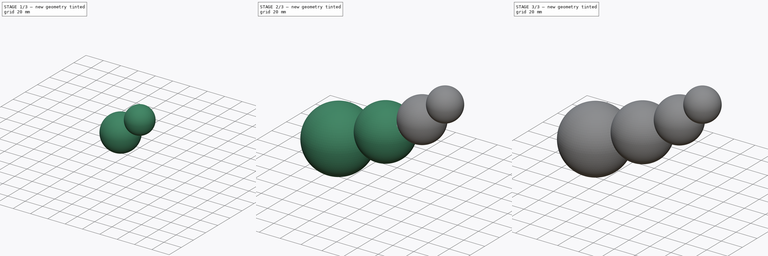
[diagram: build sequence overview — one tinted view per stage of 3, left to right]
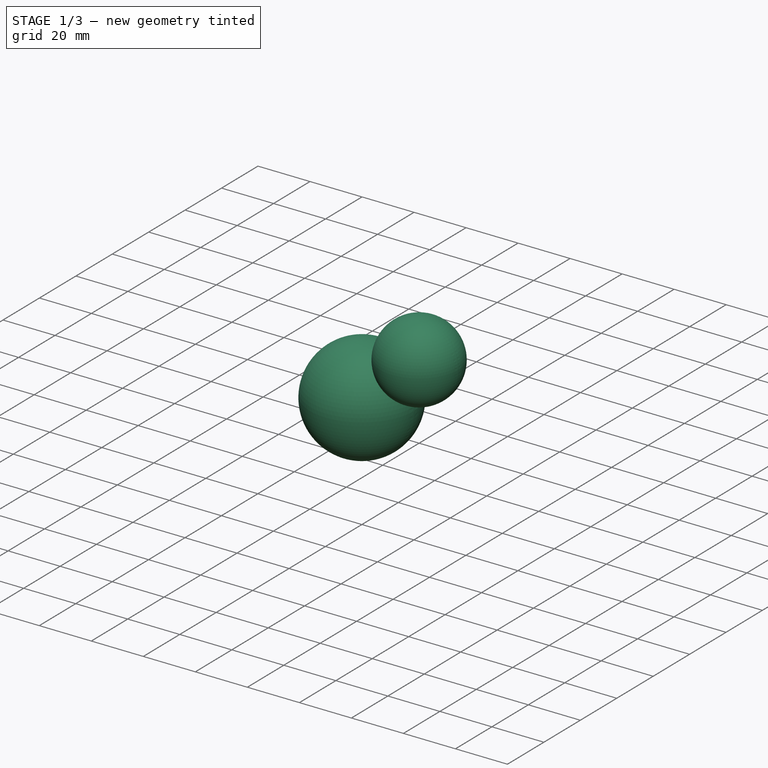
[diagram: stage 1 of 3 — iso view after this stage's code; geometry added in this stage tinted green]
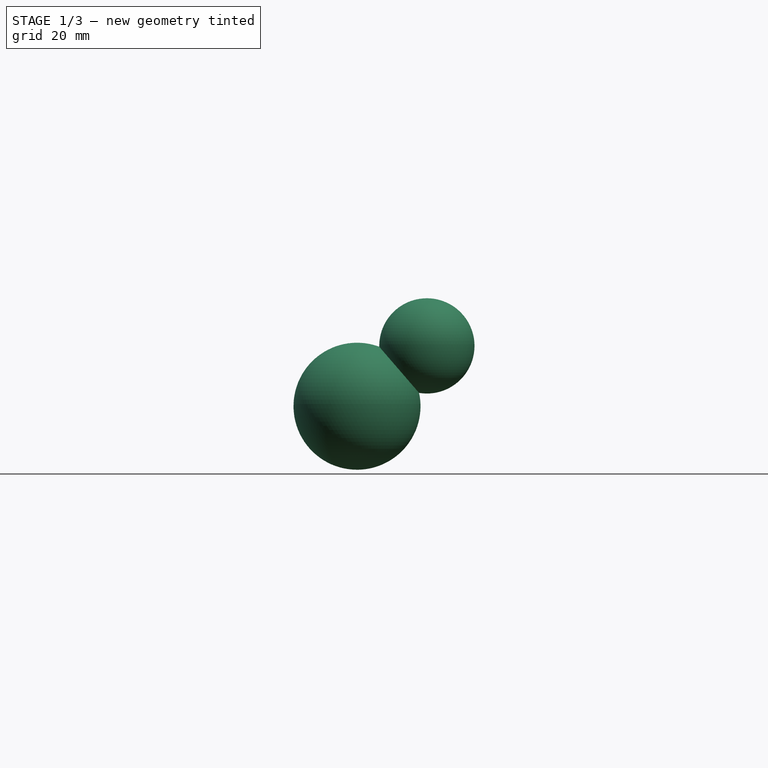
[diagram: stage 1 of 3 — front view after this stage's code; geometry added in this stage tinted green]
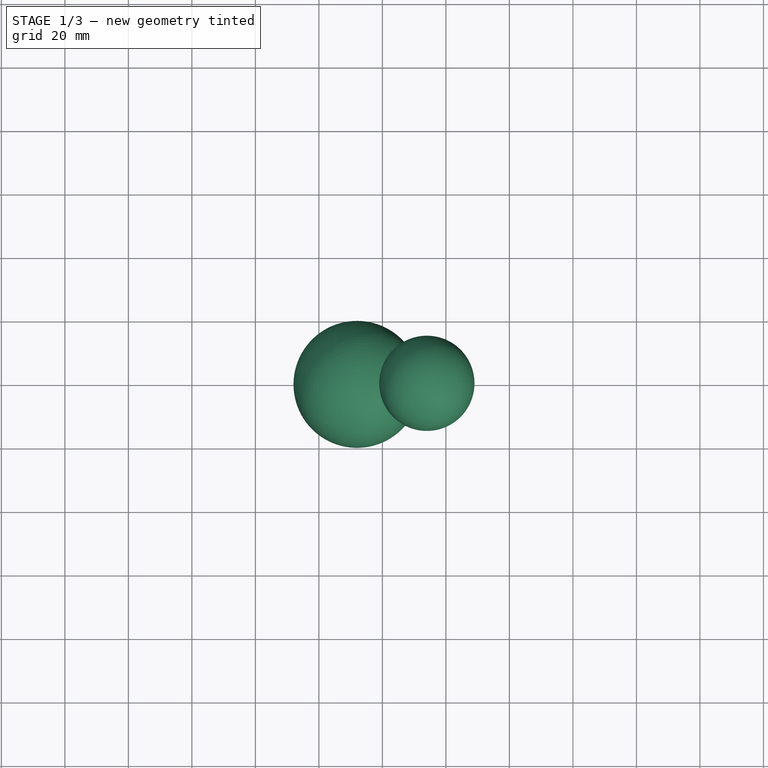
[diagram: stage 1 of 3 — top view after this stage's code; geometry added in this stage tinted green]
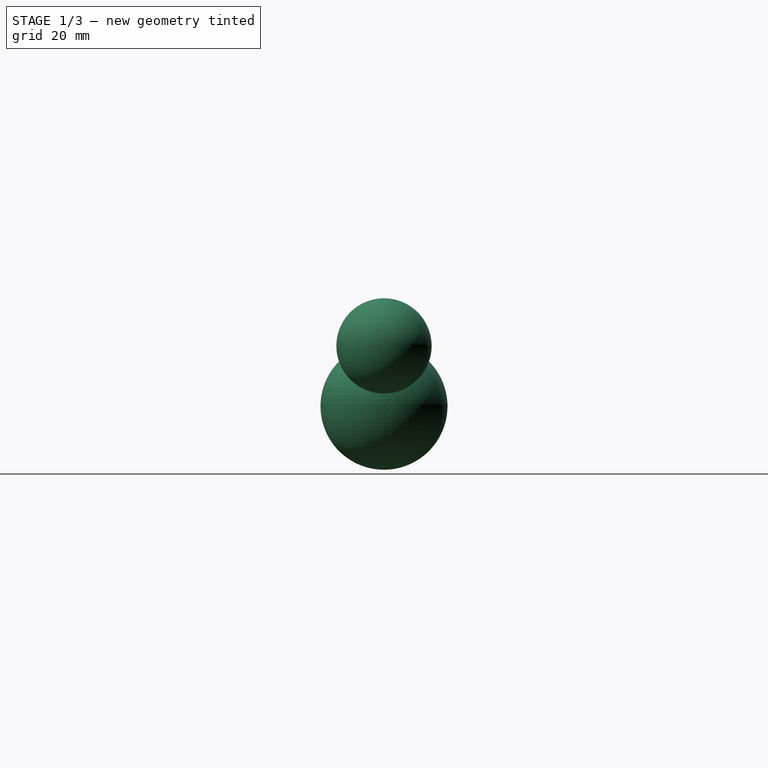
[diagram: stage 1 of 3 — right view after this stage's code; geometry added in this stage tinted green]
FCSTD DOCUMENT  (FreeCAD 0.14R3691 (Git))
Label: Shaft-1
License: CC-BY 3.0
LicenseURL: http://creativecommons.org/licenses/by/3.0/
objects: Part::Sphere×4, Sketcher::SketchObject×2, Part::Sweep×1, Part::MultiFuse×1
note: 8 computed .brp shape members not serialized (recipe doc carries the construction recipe); baked Part::Feature solids carry a one-line shape summary decoded from their .brp

FEATURE [Part::Sphere] Sphere002  label="Sphere 2"
  Angle1 = -90
  Angle2 = 90
  Angle3 = 360
  Placement = pos=(112,0,40) rot=(0,0,1;0rad)
  Radius = 20
FEATURE [Part::Sphere] Sphere003  label="Sphere 3"
  Angle1 = -90
  Angle2 = 90
  Angle3 = 360
  Placement = pos=(134,0,59) rot=(0,0,1;0rad)
  Radius = 15
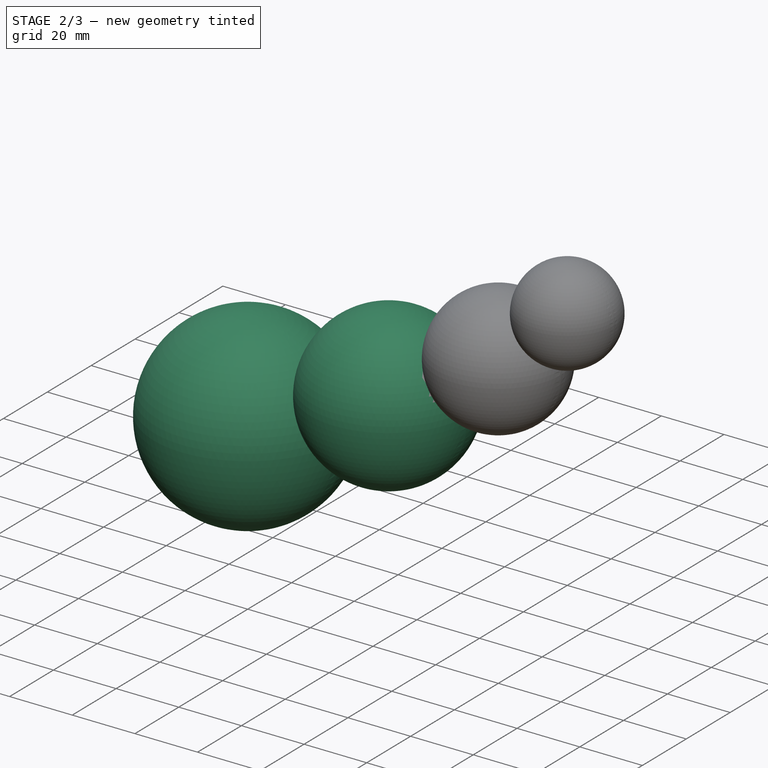
[diagram: stage 2 of 3 — iso view after this stage's code; geometry added in this stage tinted green]
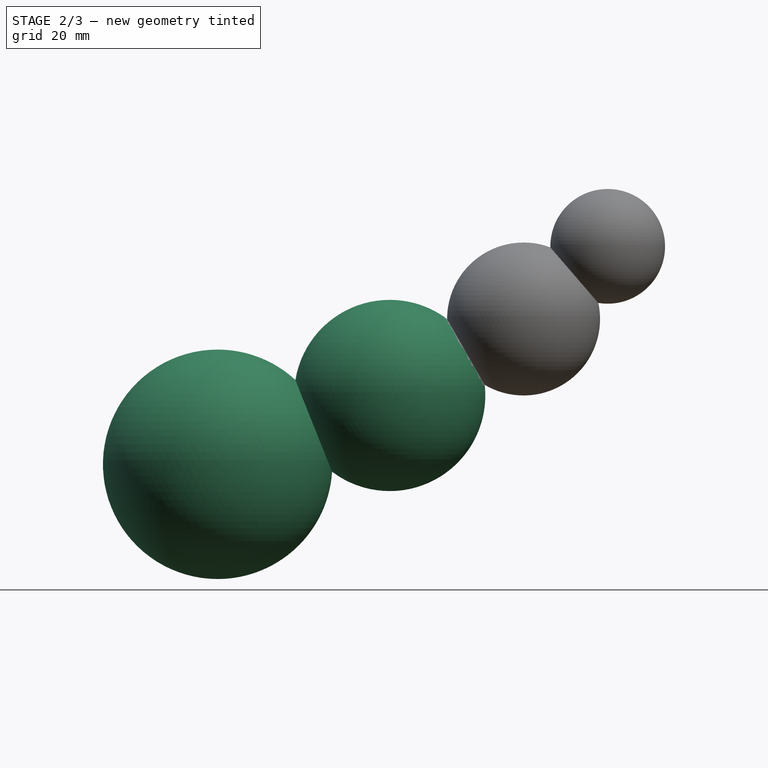
[diagram: stage 2 of 3 — front view after this stage's code; geometry added in this stage tinted green]
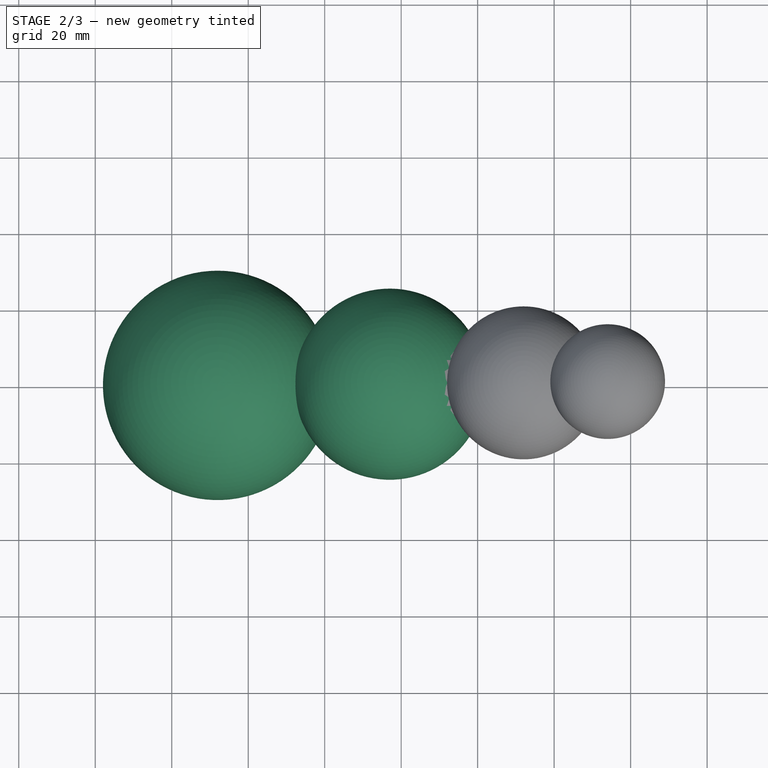
[diagram: stage 2 of 3 — top view after this stage's code; geometry added in this stage tinted green]
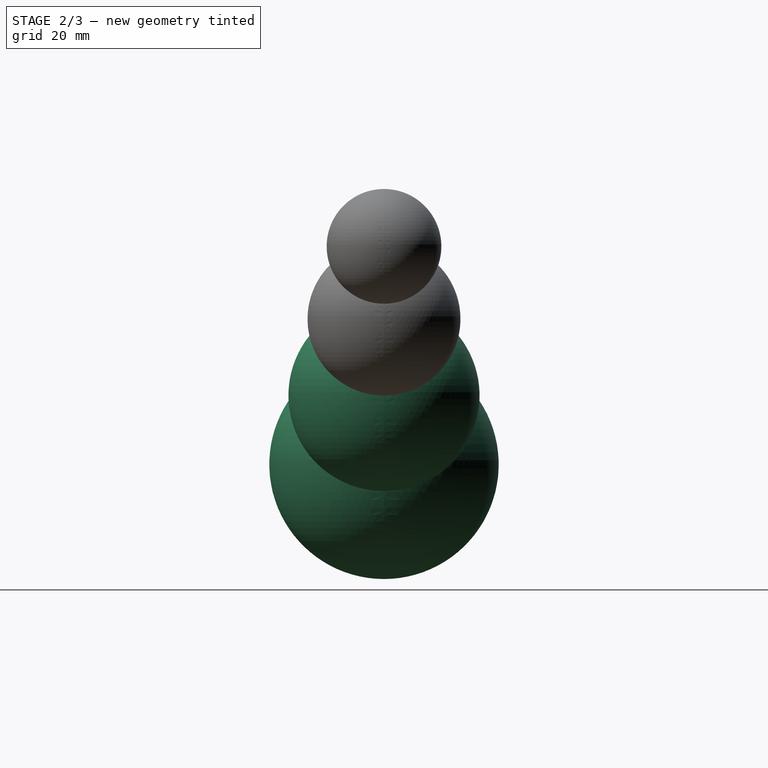
[diagram: stage 2 of 3 — right view after this stage's code; geometry added in this stage tinted green]
FEATURE [Part::Sphere] Sphere  label="Sphere 0"
  Angle1 = -90
  Angle2 = 90
  Angle3 = 360
  Placement = pos=(32,0,2) rot=(0,0,1;0rad)
  Radius = 30
FEATURE [Part::Sphere] Sphere001  label="Sphere 1"
  Angle1 = -90
  Angle2 = 90
  Angle3 = 360
  Placement = pos=(77,0,20) rot=(0,0,1;0rad)
  Radius = 25
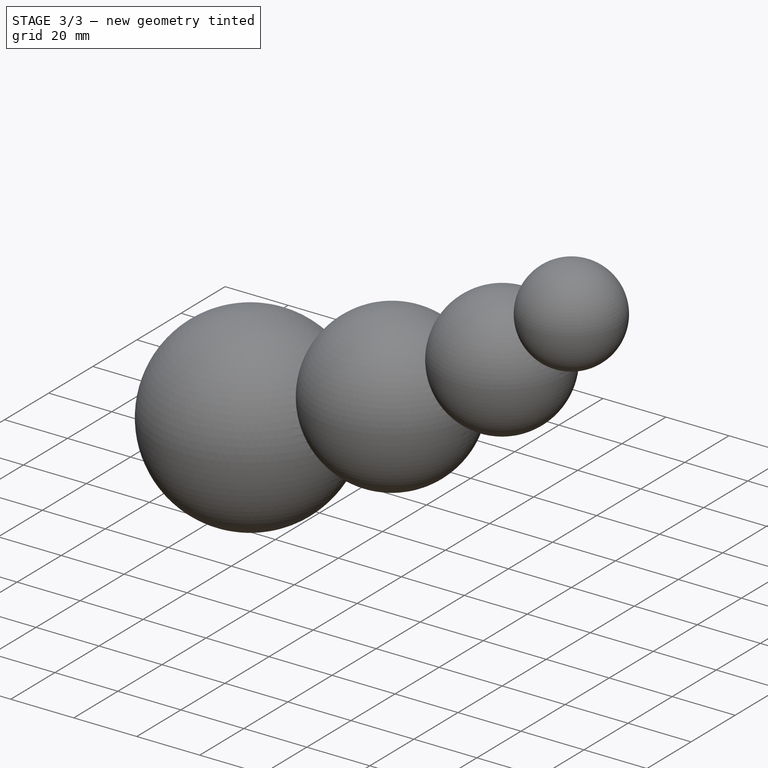
[diagram: stage 3 of 3 — iso view after this stage's code; geometry added in this stage tinted green]
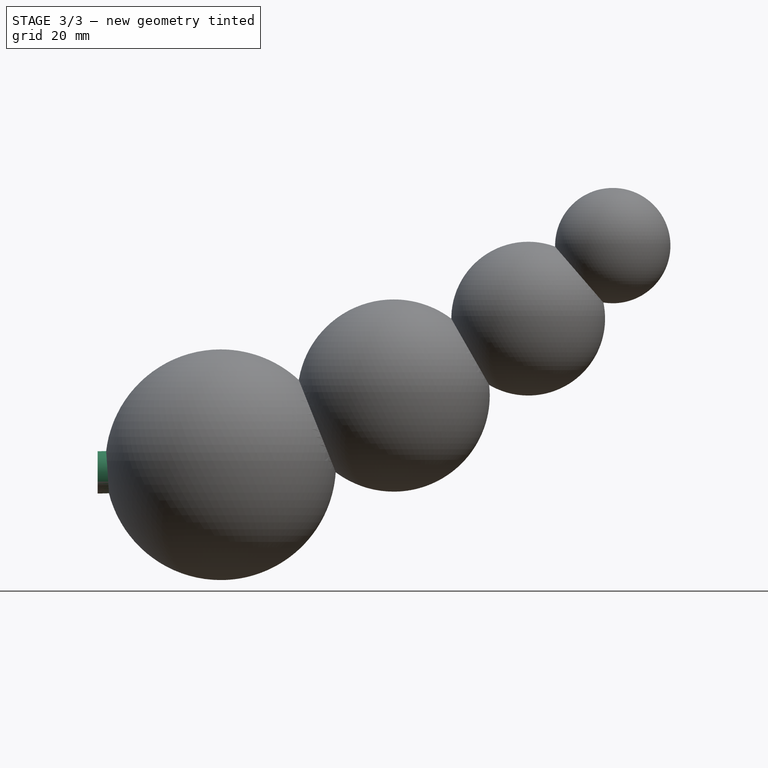
[diagram: stage 3 of 3 — front view after this stage's code; geometry added in this stage tinted green]
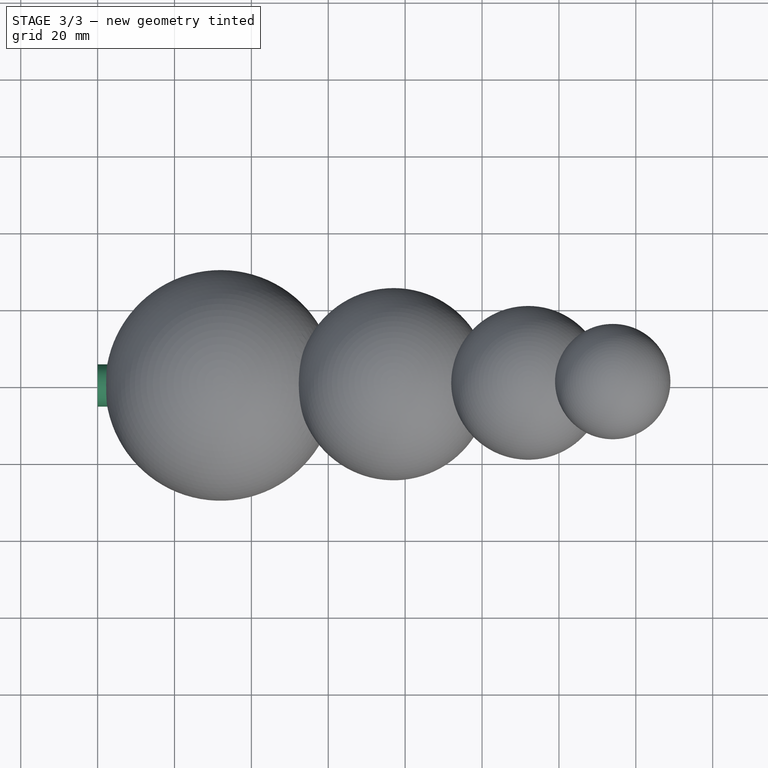
[diagram: stage 3 of 3 — top view after this stage's code; geometry added in this stage tinted green]
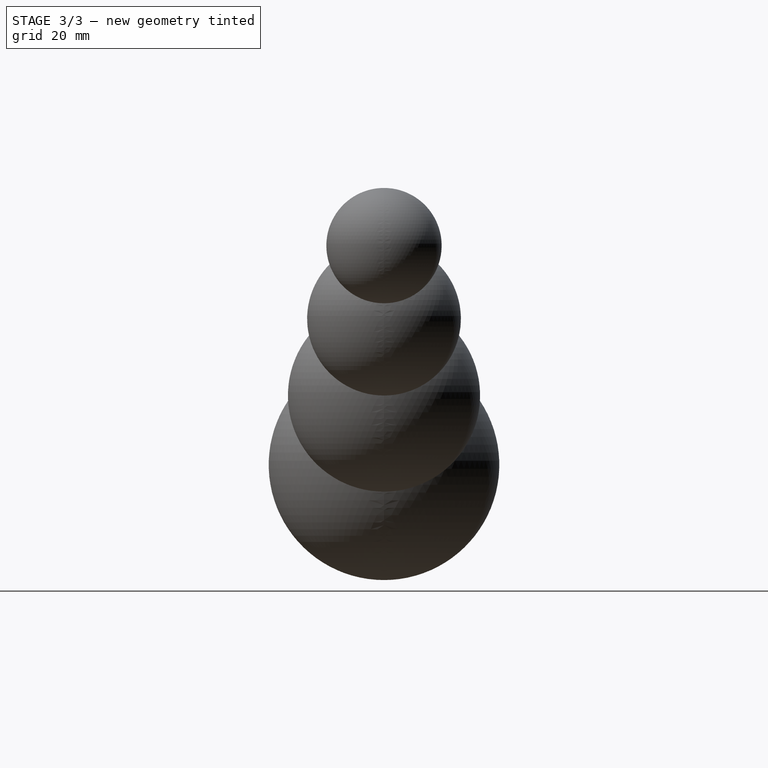
[diagram: stage 3 of 3 — right view after this stage's code; geometry added in this stage tinted green]
FEATURE [Sketcher::SketchObject] Sketch  label="Curve"
  Placement = pos=(0,0,0) rot=(1,0,0;1.5708rad)
  sketch-geometry (1):
    g0: ArcOfCircle CenterX=0 CenterY=187.481 CenterZ=0 NormalX=0 NormalY=0 NormalZ=1 Radius=187.481 StartAngle=4.71239 EndAngle=5.55922
  constraints (4):
    c: Coincident(g0,g-1)
    c: DistanceX(g0) = 140.458
    c: Radius(g0) = 187.481
    c: PointOnObject(g0,g-2)
FEATURE [Sketcher::SketchObject] Sketch006
  Placement = pos=(0,0,0) rot=(0.57735,-0.57735,-0.57735;2.0944rad)
  sketch-geometry (1):
    g0: Circle CenterX=0 CenterY=0 CenterZ=0 NormalX=0 NormalY=0 NormalZ=1 Radius=5.5
  constraints (2):
    c: Coincident(g0,g-1)
    c: Radius(g0) = 5.5
FEATURE [Part::Sweep] Sweep
  Frenet = false
  Sections = -> [Sketch006]
  Solid = true
  Spine = -> Sketch [Edge1]
  Transition = 1
FEATURE [Part::MultiFuse] Fusion
  Shapes = -> [Sphere,Sphere002,Sphere001,Sphere003]
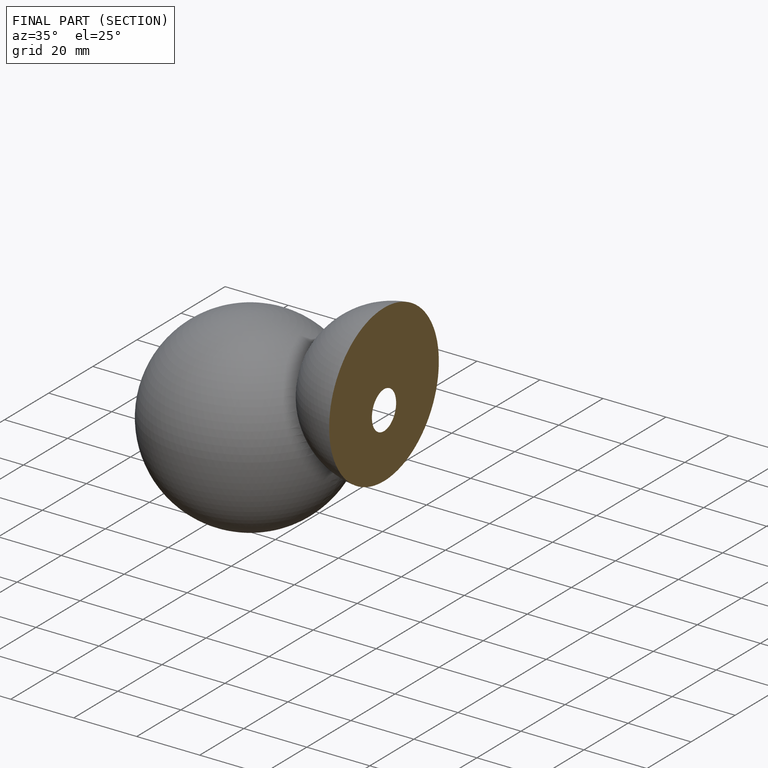
[diagram: finished part — half-section view (interior)]
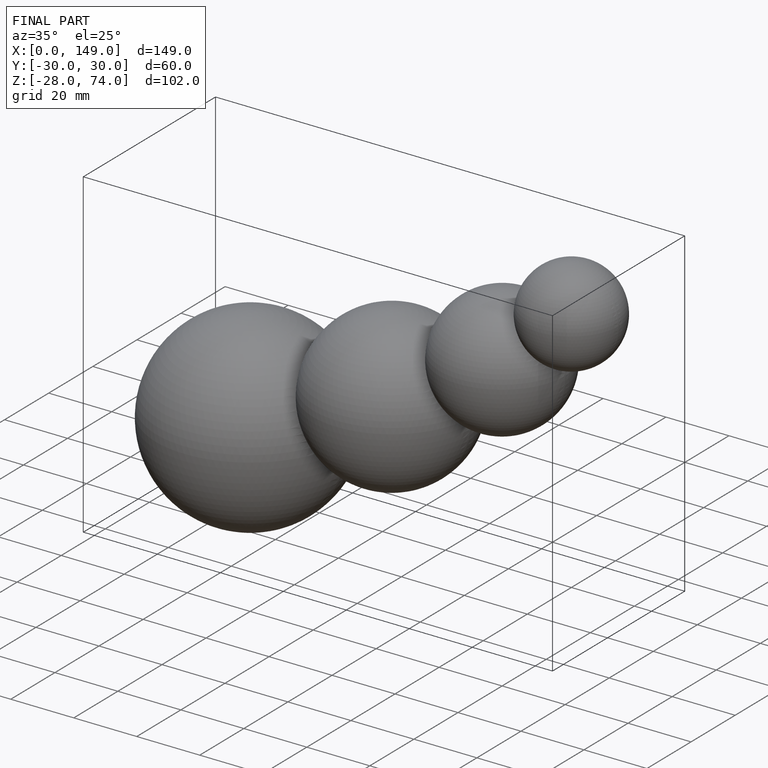
[diagram: finished part — iso view with bounding-box wireframe]
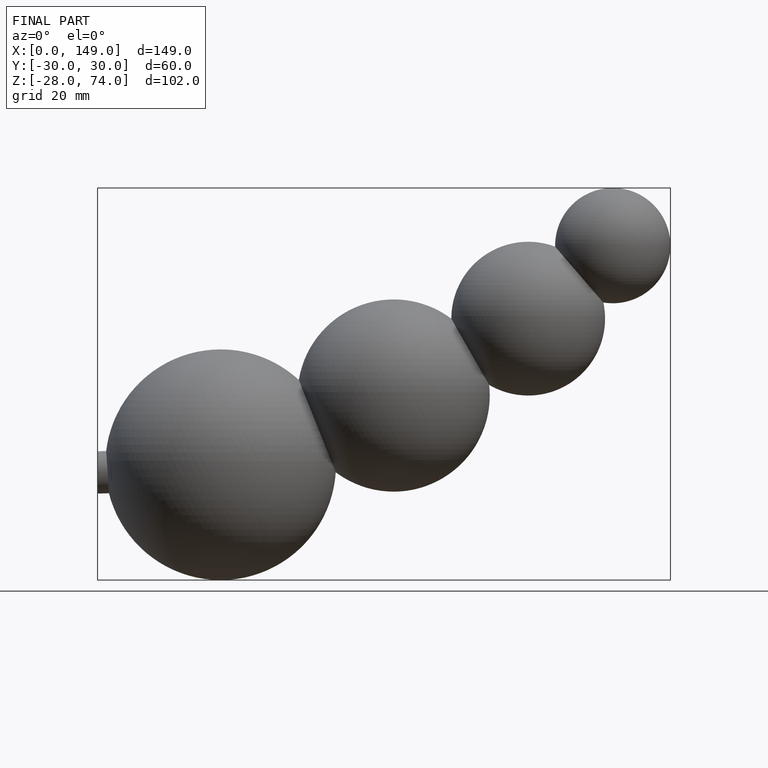
[diagram: finished part — front view with bounding-box wireframe]
